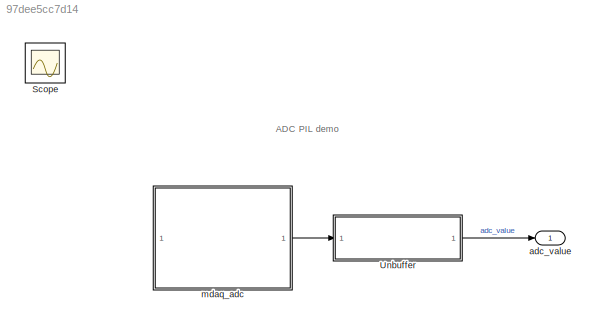
MODEL slx_97dee5cc7d14
KIND model
CONFIG AbsTol = auto
CONFIG EnableMultiTasking = on
CONFIG FixedStep = auto
CONFIG MaxStep = auto
CONFIG MinStep = auto
CONFIG RelTol = 1e-3
CONFIG SampleTimeConstraint = Unconstrained
CONFIG SolverName = FixedStepDiscrete
CONFIG StartTime = 0.0
CONFIG StopTime = 10.0
BLOCK [Scope] Scope
  Floating = off
  IOType = viewer
  NumInputPorts = 1
  ScopeSpecificationString = C++SS(StrPVP('Open','off'),StrPVP('TimeRange','auto'),StrPVP('TickLabels','OneTimeTick'),StrPVP('ShowLegends','off'),StrPVP('LimitDataPoints','off'),StrPVP('MaxDataPoints','7500'),StrPVP('SaveToWorkspace','off'),StrPVP('SaveName','ScopeData'),StrPVP('YMin','-5~-5'),StrPVP('YMax','5~5'),StrPVP('BlockParamSampleInput','off'),StrPVP('ZoomMode','on'),StrPVP('Grid','on'),StrPVP('DataFormat','Array'),St...<+152ch>
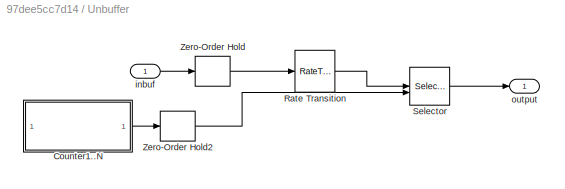
BLOCK [SubSystem] Unbuffer
  TreatAsAtomicUnit = on
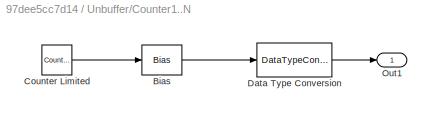
BLOCK [SubSystem] Unbuffer/Counter1..N
BLOCK [Bias] Unbuffer/Counter1..N/Bias
  Bias = 1
  SaturateOnIntegerOverflow = off
BLOCK [Reference] Unbuffer/Counter1..N/Counter Limited  REF=simulink/Sources/Counter
Limited
  SourceBlock = simulink/Sources/Counter\nLimited
  SourceType = Counter Limited
BLOCK [DataTypeConversion] Unbuffer/Counter1..N/Data Type Conversion
  RndMeth = Floor
  SaturateOnIntegerOverflow = off
BLOCK [Outport] Unbuffer/Counter1..N/Out1
BLOCK [RateTransition] Unbuffer/Rate Transition
BLOCK [Selector] Unbuffer/Selector
  IndexOptions = Index vector (port)
  Indices = [1 3]
  InputPortWidth = BufSize
  OutputSizes = 1
BLOCK [ZeroOrderHold] Unbuffer/Zero-Order Hold
  SampleTime = BufSize*Ts
BLOCK [ZeroOrderHold] Unbuffer/Zero-Order Hold2
  SampleTime = Ts
BLOCK [Inport] Unbuffer/inbuf
  SampleTime = Ts
BLOCK [Outport] Unbuffer/output
BLOCK [Outport] adc_value
BLOCK [ModelReference] mdaq_adc
  ModelNameDialog = mdaq_adc
  ModelReferenceVersion = 1.61
ANNOTATION (root): ADC PIL demo
LINE Unbuffer/Counter1..N/Bias:1 -> Unbuffer/Counter1..N/Data Type Conversion:1
LINE Unbuffer/Counter1..N/Counter Limited:1 -> Unbuffer/Counter1..N/Bias:1
LINE Unbuffer/Counter1..N/Data Type Conversion:1 -> Unbuffer/Counter1..N/Out1:1
LINE Unbuffer/Counter1..N:1 -> Unbuffer/Zero-Order Hold2:1
LINE Unbuffer/Rate Transition:1 -> Unbuffer/Selector:1
LINE Unbuffer/Selector:1 -> Unbuffer/output:1
LINE Unbuffer/Zero-Order Hold2:1 -> Unbuffer/Selector:2
LINE Unbuffer/Zero-Order Hold:1 -> Unbuffer/Rate Transition:1
LINE Unbuffer/inbuf:1 -> Unbuffer/Zero-Order Hold:1
LINE Unbuffer:1 -> adc_value:1
LINE mdaq_adc:1 -> Unbuffer:1
